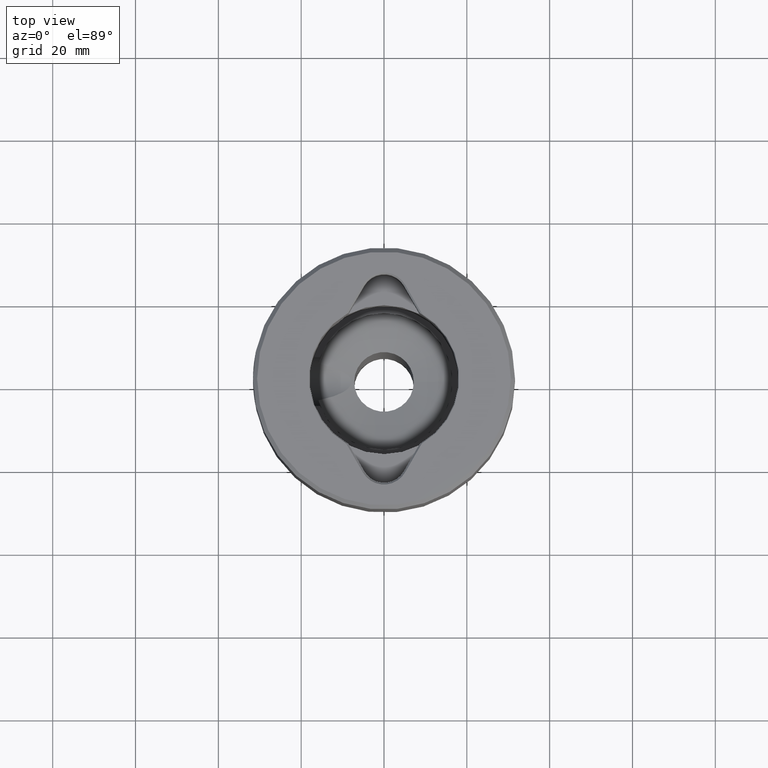
[diagram: clean part render]
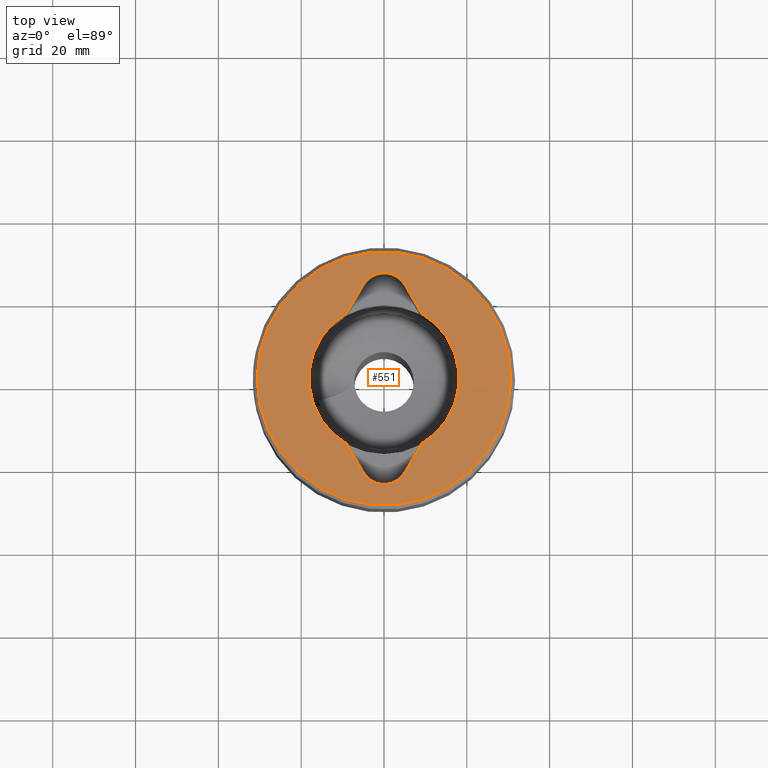
[diagram: same view with one face highlighted and labeled with its STEP entity id]
A machine part, top view. The second image highlights one B-rep face of the part: STEP entity #551.
In plain terms, the highlighted planar face has unit normal (0, 0, 1).
Its self-contained STEP definition (entity closure, byte-faithful):
#13 = EDGE_LOOP ( 'NONE', ( #496 ) ) ;
#33 = VERTEX_POINT ( 'NONE', #1141 ) ;
#57 = DIRECTION ( 'NONE',  ( 1.000000000000000000, 0.0000000000000000000, 0.0000000000000000000 ) ) ;
#65 = CARTESIAN_POINT ( 'NONE',  ( 0.0000000000000000000, 0.0000000000000000000, 0.0000000000000000000 ) ) ;
#145 = CARTESIAN_POINT ( 'NONE',  ( 30.63500000000000512, 0.0000000000000000000, 0.0000000000000000000 ) ) ;
#165 = AXIS2_PLACEMENT_3D ( 'NONE', #609, #1642, #872 ) ;
#185 = ORIENTED_EDGE ( 'NONE', *, *, #1425, .T. ) ;
#216 = VERTEX_POINT ( 'NONE', #145 ) ;
#217 = ORIENTED_EDGE ( 'NONE', *, *, #226, .T. ) ;
#226 = EDGE_CURVE ( 'NONE', #521, #751, #996, .T. ) ;
#244 = VECTOR ( 'NONE', #1244, 1000.000000000000114 ) ;
#263 = VERTEX_POINT ( 'NONE', #1245 ) ;
#269 = LINE ( 'NONE', #340, #244 ) ;
#275 = DIRECTION ( 'NONE',  ( 0.0000000000000000000, 0.0000000000000000000, 1.000000000000000000 ) ) ;
#330 = DIRECTION ( 'NONE',  ( 0.0000000000000000000, 0.0000000000000000000, 1.000000000000000000 ) ) ;
#337 = AXIS2_PLACEMENT_3D ( 'NONE', #1559, #275, #1576 ) ;
#340 = CARTESIAN_POINT ( 'NONE',  ( 8.802687954009861926, 16.25329722059404958, 0.0000000000000000000 ) ) ;
#369 = CIRCLE ( 'NONE', #477, 30.63500000000000512 ) ;
#378 = DIRECTION ( 'NONE',  ( 1.000000000000000000, 0.0000000000000000000, 0.0000000000000000000 ) ) ;
#388 = EDGE_CURVE ( 'NONE', #1628, #1486, #1140, .T. ) ;
#395 = DIRECTION ( 'NONE',  ( 1.000000000000000000, 0.0000000000000000000, 0.0000000000000000000 ) ) ;
#433 = VERTEX_POINT ( 'NONE', #629 ) ;
#477 = AXIS2_PLACEMENT_3D ( 'NONE', #65, #330, #57 ) ;
#496 = ORIENTED_EDGE ( 'NONE', *, *, #1349, .T. ) ;
#515 = DIRECTION ( 'NONE',  ( -0.0000000000000000000, -0.0000000000000000000, -1.000000000000000000 ) ) ;
#520 = VECTOR ( 'NONE', #1124, 999.9999999999998863 ) ;
#521 = VERTEX_POINT ( 'NONE', #535 ) ;
#535 = CARTESIAN_POINT ( 'NONE',  ( -9.135610882865686122, 15.67665779281116833, 0.0000000000000000000 ) ) ;
#539 = ORIENTED_EDGE ( 'NONE', *, *, #1641, .T. ) ;
#542 = VECTOR ( 'NONE', #1553, 1000.000000000000000 ) ;
#551 = ADVANCED_FACE ( 'NONE', ( #711, #1674 ), #924, .T. ) ;
#609 = CARTESIAN_POINT ( 'NONE',  ( -6.071532165918824830E-15, -19.70000000000004903, 0.0000000000000000000 ) ) ;
#629 = CARTESIAN_POINT ( 'NONE',  ( 5.109549882377416807, 22.65000000002844160, 0.0000000000000000000 ) ) ;
#660 = VERTEX_POINT ( 'NONE', #889 ) ;
#684 = EDGE_LOOP ( 'NONE', ( #1090, #1525, #1379, #217, #539, #1375, #1278, #185 ) ) ;
#693 = EDGE_CURVE ( 'NONE', #33, #660, #1619, .T. ) ;
#711 = FACE_OUTER_BOUND ( 'NONE', #13, .T. ) ;
#751 = VERTEX_POINT ( 'NONE', #945 ) ;
#872 = DIRECTION ( 'NONE',  ( 1.000000000000000000, 0.0000000000000000000, 0.0000000000000000000 ) ) ;
#880 = EDGE_CURVE ( 'NONE', #433, #1628, #269, .T. ) ;
#889 = CARTESIAN_POINT ( 'NONE',  ( -9.135610882865691451, -15.67665779281116478, 0.0000000000000000000 ) ) ;
#924 = PLANE ( 'NONE',  #337 ) ;
#928 = EDGE_CURVE ( 'NONE', #660, #521, #1155, .T. ) ;
#945 = CARTESIAN_POINT ( 'NONE',  ( -5.109549882377431906, 22.65000000002844160, 0.0000000000000000000 ) ) ;
#975 = CIRCLE ( 'NONE', #165, 5.900000000056835781 ) ;
#996 = LINE ( 'NONE', #1123, #1120 ) ;
#1003 = CARTESIAN_POINT ( 'NONE',  ( 5.109549882377417696, -22.65000000002845226, 0.0000000000000000000 ) ) ;
#1016 = CARTESIAN_POINT ( 'NONE',  ( 0.0000000000000000000, 0.0000000000000000000, 0.0000000000000000000 ) ) ;
#1018 = CARTESIAN_POINT ( 'NONE',  ( -8.673617379884035472E-15, 19.70000000000003837, 0.0000000000000000000 ) ) ;
#1090 = ORIENTED_EDGE ( 'NONE', *, *, #1396, .T. ) ;
#1107 = DIRECTION ( 'NONE',  ( 0.4999999999999978351, 0.8660254037844399289, 0.0000000000000000000 ) ) ;
#1120 = VECTOR ( 'NONE', #1107, 999.9999999999998863 ) ;
#1123 = CARTESIAN_POINT ( 'NONE',  ( -5.109549882377431906, 22.65000000002844160, 0.0000000000000000000 ) ) ;
#1124 = DIRECTION ( 'NONE',  ( -0.4999999999999978351, -0.8660254037844399289, 0.0000000000000000000 ) ) ;
#1140 = CIRCLE ( 'NONE', #1624, 18.14433756729743408 ) ;
#1141 = CARTESIAN_POINT ( 'NONE',  ( -5.109549882377431018, -22.65000000002843450, 0.0000000000000000000 ) ) ;
#1155 = CIRCLE ( 'NONE', #1456, 18.14433756729743408 ) ;
#1244 = DIRECTION ( 'NONE',  ( 0.4999999999999970579, -0.8660254037844402619, 0.0000000000000000000 ) ) ;
#1245 = CARTESIAN_POINT ( 'NONE',  ( 5.109549882377415919, -22.65000000002845582, 0.0000000000000000000 ) ) ;
#1256 = CIRCLE ( 'NONE', #1363, 5.900000000056842886 ) ;
#1261 = CARTESIAN_POINT ( 'NONE',  ( 0.0000000000000000000, 0.0000000000000000000, 0.0000000000000000000 ) ) ;
#1266 = CARTESIAN_POINT ( 'NONE',  ( -8.802687954009897453, -16.25329722059403181, 0.0000000000000000000 ) ) ;
#1278 = ORIENTED_EDGE ( 'NONE', *, *, #388, .T. ) ;
#1287 = DIRECTION ( 'NONE',  ( -0.0000000000000000000, -0.0000000000000000000, -1.000000000000000000 ) ) ;
#1349 = EDGE_CURVE ( 'NONE', #216, #216, #369, .T. ) ;
#1363 = AXIS2_PLACEMENT_3D ( 'NONE', #1018, #1287, #378 ) ;
#1375 = ORIENTED_EDGE ( 'NONE', *, *, #880, .T. ) ;
#1379 = ORIENTED_EDGE ( 'NONE', *, *, #928, .T. ) ;
#1396 = EDGE_CURVE ( 'NONE', #263, #33, #975, .T. ) ;
#1425 = EDGE_CURVE ( 'NONE', #1486, #263, #1437, .T. ) ;
#1437 = LINE ( 'NONE', #1003, #520 ) ;
#1456 = AXIS2_PLACEMENT_3D ( 'NONE', #1261, #1618, #1645 ) ;
#1486 = VERTEX_POINT ( 'NONE', #1629 ) ;
#1525 = ORIENTED_EDGE ( 'NONE', *, *, #693, .T. ) ;
#1553 = DIRECTION ( 'NONE',  ( -0.4999999999999986677, 0.8660254037844393737, 0.0000000000000000000 ) ) ;
#1559 = CARTESIAN_POINT ( 'NONE',  ( 0.0000000000000000000, 0.0000000000000000000, 0.0000000000000000000 ) ) ;
#1576 = DIRECTION ( 'NONE',  ( 1.000000000000000000, 0.0000000000000000000, -0.0000000000000000000 ) ) ;
#1618 = DIRECTION ( 'NONE',  ( -0.0000000000000000000, -0.0000000000000000000, -1.000000000000000000 ) ) ;
#1619 = LINE ( 'NONE', #1266, #542 ) ;
#1624 = AXIS2_PLACEMENT_3D ( 'NONE', #1016, #515, #395 ) ;
#1625 = CARTESIAN_POINT ( 'NONE',  ( 9.135610882865647042, 15.67665779281118787, 0.0000000000000000000 ) ) ;
#1628 = VERTEX_POINT ( 'NONE', #1625 ) ;
#1629 = CARTESIAN_POINT ( 'NONE',  ( 9.135610882865673688, -15.67665779281117366, 0.0000000000000000000 ) ) ;
#1641 = EDGE_CURVE ( 'NONE', #751, #433, #1256, .T. ) ;
#1642 = DIRECTION ( 'NONE',  ( -0.0000000000000000000, -0.0000000000000000000, -1.000000000000000000 ) ) ;
#1645 = DIRECTION ( 'NONE',  ( 1.000000000000000000, 8.881784197001252323E-16, 0.0000000000000000000 ) ) ;
#1674 = FACE_BOUND ( 'NONE', #684, .T. ) ;